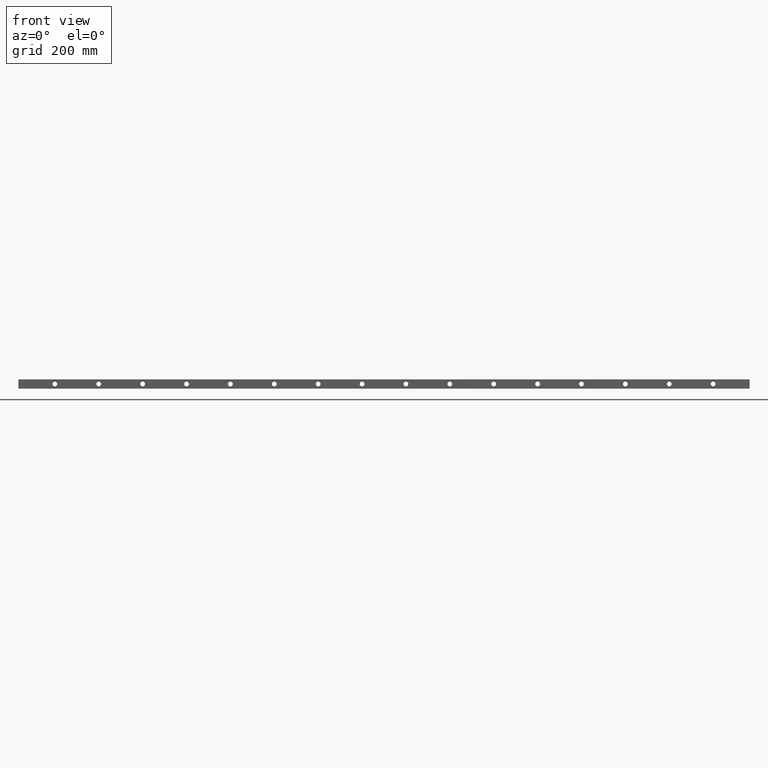
[diagram: clean part render]
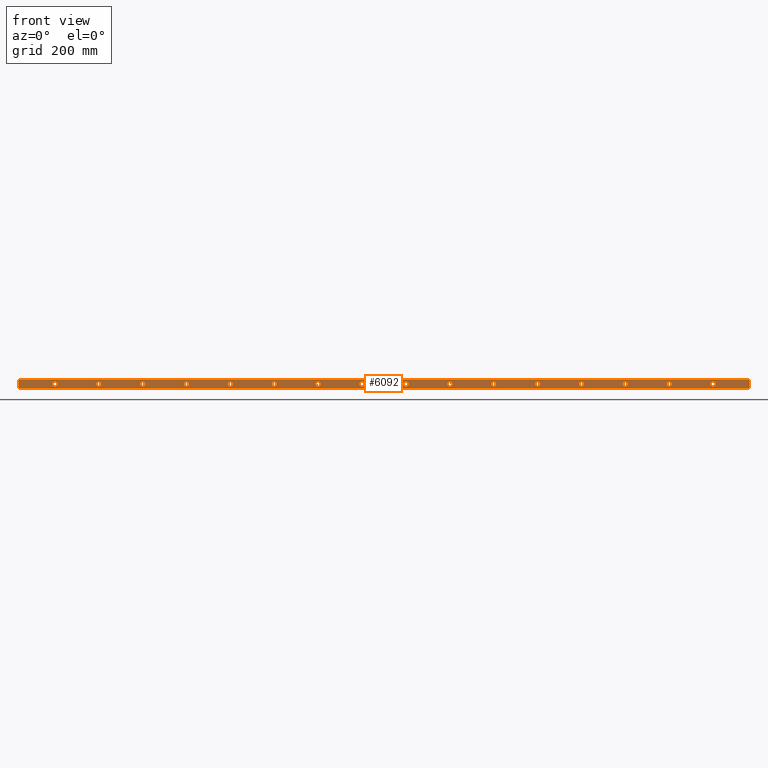
[diagram: same view with one face highlighted and labeled with its STEP entity id]
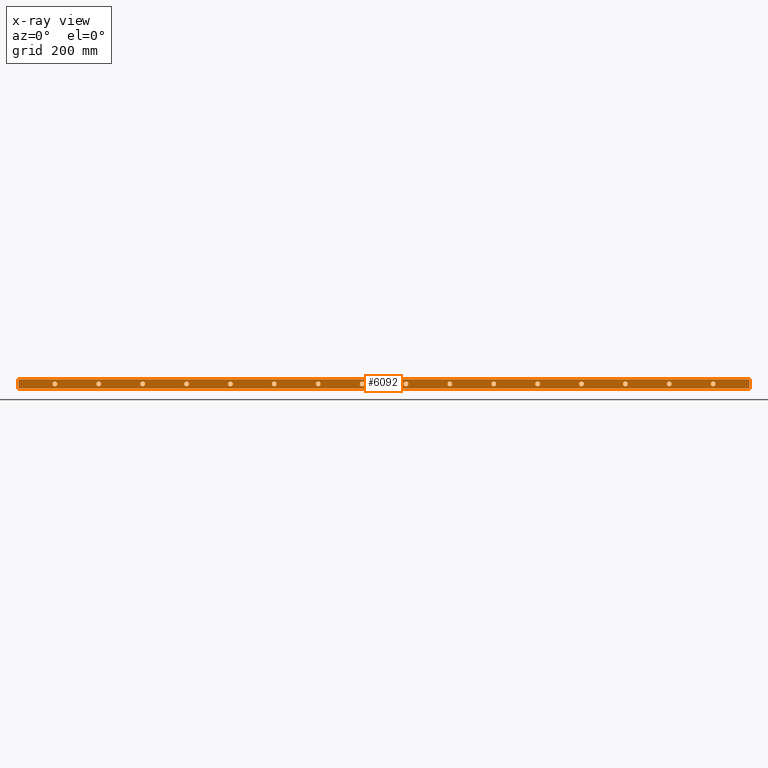
[diagram: x-ray of the same camera — body ghosted, the highlighted face saturated]
A machine part, front view. The second image highlights one B-rep face of the part: STEP entity #6092.
The next image is the same camera in x-ray: the body ghosted, the highlighted face saturated — about 0% of this face is hidden behind the body in this view.
In plain terms, the highlighted planar face has unit normal (0, -1, 0).
Its self-contained STEP definition (entity closure, byte-faithful):
#44 = DIRECTION ( 'NONE',  ( 0.0000000000000000000, 1.000000000000000000, 0.0000000000000000000 ) ) ;
#54 = EDGE_CURVE ( 'NONE', #7070, #1984, #3740, .T. ) ;
#64 = DIRECTION ( 'NONE',  ( 0.0000000000000000000, 1.000000000000000000, 0.0000000000000000000 ) ) ;
#69 = ORIENTED_EDGE ( 'NONE', *, *, #3515, .T. ) ;
#71 = DIRECTION ( 'NONE',  ( 0.0000000000000000000, 0.0000000000000000000, 1.000000000000000000 ) ) ;
#73 = DIRECTION ( 'NONE',  ( 0.0000000000000000000, 1.000000000000000000, 0.0000000000000000000 ) ) ;
#78 = CARTESIAN_POINT ( 'NONE',  ( 699.9999999999997700, 0.0000000000000000000, -12.50000000000000000 ) ) ;
#121 = DIRECTION ( 'NONE',  ( 0.0000000000000000000, 0.0000000000000000000, 1.000000000000000000 ) ) ;
#138 = AXIS2_PLACEMENT_3D ( 'NONE', #6179, #2925, #6722 ) ;
#202 = DIRECTION ( 'NONE',  ( 0.0000000000000000000, 0.0000000000000000000, 1.000000000000000000 ) ) ;
#223 = ORIENTED_EDGE ( 'NONE', *, *, #6229, .T. ) ;
#227 = CIRCLE ( 'NONE', #274, 6.500000000000019500 ) ;
#274 = AXIS2_PLACEMENT_3D ( 'NONE', #3776, #353, #4330 ) ;
#284 = DIRECTION ( 'NONE',  ( 0.0000000000000000000, 1.000000000000000000, 0.0000000000000000000 ) ) ;
#303 = DIRECTION ( 'NONE',  ( 0.0000000000000000000, 0.0000000000000000000, 1.000000000000000000 ) ) ;
#305 = DIRECTION ( 'NONE',  ( 0.0000000000000000000, 1.000000000000000000, 0.0000000000000000000 ) ) ;
#315 = CARTESIAN_POINT ( 'NONE',  ( 1899.999999999999500, 0.0000000000000000000, -12.50000000000000000 ) ) ;
#317 = AXIS2_PLACEMENT_3D ( 'NONE', #3084, #6868, #3626 ) ;
#341 = DIRECTION ( 'NONE',  ( 0.0000000000000000000, 1.000000000000000000, 0.0000000000000000000 ) ) ;
#348 = VERTEX_POINT ( 'NONE', #1387 ) ;
#350 = EDGE_LOOP ( 'NONE', ( #4107, #443 ) ) ;
#353 = DIRECTION ( 'NONE',  ( 0.0000000000000000000, 1.000000000000000000, 0.0000000000000000000 ) ) ;
#359 = VERTEX_POINT ( 'NONE', #874 ) ;
#375 = VERTEX_POINT ( 'NONE', #788 ) ;
#409 = AXIS2_PLACEMENT_3D ( 'NONE', #2719, #6525, #3274 ) ;
#420 = DIRECTION ( 'NONE',  ( 1.000000000000000000, 0.0000000000000000000, 0.0000000000000000000 ) ) ;
#429 = CIRCLE ( 'NONE', #5312, 6.499999999999903200 ) ;
#443 = ORIENTED_EDGE ( 'NONE', *, *, #709, .T. ) ;
#471 = CARTESIAN_POINT ( 'NONE',  ( 1179.999999999999800, 0.0000000000000000000, -18.99999999999990800 ) ) ;
#496 = FACE_BOUND ( 'NONE', #4873, .T. ) ;
#533 = ORIENTED_EDGE ( 'NONE', *, *, #5989, .T. ) ;
#539 = EDGE_LOOP ( 'NONE', ( #5753, #3372 ) ) ;
#541 = EDGE_LOOP ( 'NONE', ( #1098, #69 ) ) ;
#561 = DIRECTION ( 'NONE',  ( 0.0000000000000000000, -1.000000000000000000, 0.0000000000000000000 ) ) ;
#572 = EDGE_CURVE ( 'NONE', #3304, #4047, #2370, .T. ) ;
#588 = CIRCLE ( 'NONE', #802, 6.499999999999903200 ) ;
#597 = CARTESIAN_POINT ( 'NONE',  ( 1419.999999999999500, 0.0000000000000000000, -18.99999999999990800 ) ) ;
#602 = ORIENTED_EDGE ( 'NONE', *, *, #5417, .T. ) ;
#624 = EDGE_CURVE ( 'NONE', #1178, #5494, #792, .T. ) ;
#671 = FACE_BOUND ( 'NONE', #1811, .T. ) ;
#688 = CARTESIAN_POINT ( 'NONE',  ( 0.0000000000000000000, 0.0000000000000000000, 0.0000000000000000000 ) ) ;
#700 = DIRECTION ( 'NONE',  ( 0.0000000000000000000, 0.0000000000000000000, 1.000000000000000000 ) ) ;
#709 = EDGE_CURVE ( 'NONE', #7146, #4672, #3502, .T. ) ;
#715 = CARTESIAN_POINT ( 'NONE',  ( 0.0000000000000000000, 0.0000000000000000000, 0.0000000000000000000 ) ) ;
#717 = DIRECTION ( 'NONE',  ( 0.0000000000000000000, 1.000000000000000000, 0.0000000000000000000 ) ) ;
#743 = CARTESIAN_POINT ( 'NONE',  ( 1539.999999999999500, 0.0000000000000000000, -12.50000000000000000 ) ) ;
#756 = CARTESIAN_POINT ( 'NONE',  ( 100.0000000000000000, 0.0000000000000000000, -19.00000000000001800 ) ) ;
#760 = AXIS2_PLACEMENT_3D ( 'NONE', #1340, #5271, #1927 ) ;
#764 = CIRCLE ( 'NONE', #409, 6.500000000000135000 ) ;
#782 = CARTESIAN_POINT ( 'NONE',  ( 1779.999999999999300, 0.0000000000000000000, -5.999999999999865900 ) ) ;
#787 = DIRECTION ( 'NONE',  ( 0.0000000000000000000, 1.000000000000000000, 0.0000000000000000000 ) ) ;
#788 = CARTESIAN_POINT ( 'NONE',  ( 819.9999999999997700, 0.0000000000000000000, -19.00000000000002100 ) ) ;
#792 = CIRCLE ( 'NONE', #3488, 6.499999999999903200 ) ;
#799 = EDGE_CURVE ( 'NONE', #5751, #1455, #429, .T. ) ;
#802 = AXIS2_PLACEMENT_3D ( 'NONE', #6148, #2893, #6694 ) ;
#804 = DIRECTION ( 'NONE',  ( 0.0000000000000000000, 1.000000000000000000, 0.0000000000000000000 ) ) ;
#847 = VERTEX_POINT ( 'NONE', #6675 ) ;
#862 = FACE_BOUND ( 'NONE', #6724, .T. ) ;
#874 = CARTESIAN_POINT ( 'NONE',  ( 939.9999999999996600, 0.0000000000000000000, -19.00000000000002100 ) ) ;
#957 = CARTESIAN_POINT ( 'NONE',  ( 339.9999999999998900, 0.0000000000000000000, -12.50000000000000000 ) ) ;
#1017 = CARTESIAN_POINT ( 'NONE',  ( 459.9999999999998300, 0.0000000000000000000, -12.50000000000000000 ) ) ;
#1023 = CARTESIAN_POINT ( 'NONE',  ( 100.0000000000000000, 0.0000000000000000000, -12.50000000000000000 ) ) ;
#1034 = VECTOR ( 'NONE', #3085, 1000.000000000000000 ) ;
#1037 = VERTEX_POINT ( 'NONE', #5722 ) ;
#1040 = FACE_BOUND ( 'NONE', #4923, .T. ) ;
#1098 = ORIENTED_EDGE ( 'NONE', *, *, #1151, .T. ) ;
#1151 = EDGE_CURVE ( 'NONE', #4260, #6248, #6115, .T. ) ;
#1178 = VERTEX_POINT ( 'NONE', #5285 ) ;
#1184 = EDGE_LOOP ( 'NONE', ( #6414, #533 ) ) ;
#1307 = AXIS2_PLACEMENT_3D ( 'NONE', #6872, #3632, #202 ) ;
#1340 = CARTESIAN_POINT ( 'NONE',  ( 819.9999999999997700, 0.0000000000000000000, -12.50000000000000000 ) ) ;
#1347 = CARTESIAN_POINT ( 'NONE',  ( 219.9999999999999700, 0.0000000000000000000, -19.00000000000001800 ) ) ;
#1354 = ORIENTED_EDGE ( 'NONE', *, *, #7086, .T. ) ;
#1365 = CARTESIAN_POINT ( 'NONE',  ( 579.9999999999998900, 0.0000000000000000000, -19.00000000000002100 ) ) ;
#1387 = CARTESIAN_POINT ( 'NONE',  ( 1419.999999999999500, 0.0000000000000000000, -6.000000000000097700 ) ) ;
#1391 = CARTESIAN_POINT ( 'NONE',  ( 1059.999999999999500, 0.0000000000000000000, -12.50000000000000000 ) ) ;
#1407 = CARTESIAN_POINT ( 'NONE',  ( 2000.000000000000000, 0.0000000000000000000, -25.00000000000000000 ) ) ;
#1445 = CARTESIAN_POINT ( 'NONE',  ( 1779.999999999999300, 0.0000000000000000000, -19.00000000000013500 ) ) ;
#1455 = VERTEX_POINT ( 'NONE', #4277 ) ;
#1478 = VERTEX_POINT ( 'NONE', #4283 ) ;
#1542 = DIRECTION ( 'NONE',  ( 0.0000000000000000000, 0.0000000000000000000, 1.000000000000000000 ) ) ;
#1599 = ORIENTED_EDGE ( 'NONE', *, *, #2044, .T. ) ;
#1600 = DIRECTION ( 'NONE',  ( 0.0000000000000000000, 1.000000000000000000, 0.0000000000000000000 ) ) ;
#1601 = DIRECTION ( 'NONE',  ( 0.0000000000000000000, 0.0000000000000000000, 1.000000000000000000 ) ) ;
#1606 = DIRECTION ( 'NONE',  ( 0.0000000000000000000, 0.0000000000000000000, 1.000000000000000000 ) ) ;
#1638 = AXIS2_PLACEMENT_3D ( 'NONE', #4183, #787, #4742 ) ;
#1645 = VERTEX_POINT ( 'NONE', #3555 ) ;
#1660 = DIRECTION ( 'NONE',  ( 0.0000000000000000000, 0.0000000000000000000, 1.000000000000000000 ) ) ;
#1665 = DIRECTION ( 'NONE',  ( 0.0000000000000000000, 1.000000000000000000, 0.0000000000000000000 ) ) ;
#1668 = CARTESIAN_POINT ( 'NONE',  ( 939.9999999999996600, 0.0000000000000000000, -12.50000000000000000 ) ) ;
#1720 = ORIENTED_EDGE ( 'NONE', *, *, #5939, .T. ) ;
#1730 = EDGE_LOOP ( 'NONE', ( #3503, #4282, #6561, #6377 ) ) ;
#1756 = DIRECTION ( 'NONE',  ( 0.0000000000000000000, 1.000000000000000000, 0.0000000000000000000 ) ) ;
#1772 = AXIS2_PLACEMENT_3D ( 'NONE', #1017, #4964, #1601 ) ;
#1782 = DIRECTION ( 'NONE',  ( 0.0000000000000000000, 1.000000000000000000, 0.0000000000000000000 ) ) ;
#1784 = LINE ( 'NONE', #1407, #4744 ) ;
#1809 = ORIENTED_EDGE ( 'NONE', *, *, #799, .T. ) ;
#1811 = EDGE_LOOP ( 'NONE', ( #602, #4707 ) ) ;
#1897 = ORIENTED_EDGE ( 'NONE', *, *, #624, .T. ) ;
#1907 = CARTESIAN_POINT ( 'NONE',  ( 1779.999999999999300, 0.0000000000000000000, -12.50000000000000000 ) ) ;
#1927 = DIRECTION ( 'NONE',  ( 0.0000000000000000000, 0.0000000000000000000, 1.000000000000000000 ) ) ;
#1929 = CARTESIAN_POINT ( 'NONE',  ( 2000.000000000000000, 0.0000000000000000000, -25.00000000000000000 ) ) ;
#1978 = DIRECTION ( 'NONE',  ( 0.0000000000000000000, 0.0000000000000000000, 1.000000000000000000 ) ) ;
#1984 = VERTEX_POINT ( 'NONE', #2042 ) ;
#1995 = DIRECTION ( 'NONE',  ( -0.0000000000000000000, -0.0000000000000000000, -1.000000000000000000 ) ) ;
#2003 = CIRCLE ( 'NONE', #7057, 6.500000000000019500 ) ;
#2042 = CARTESIAN_POINT ( 'NONE',  ( 2000.000000000000000, 0.0000000000000000000, 0.0000000000000000000 ) ) ;
#2044 = EDGE_CURVE ( 'NONE', #5022, #359, #6982, .T. ) ;
#2048 = FACE_BOUND ( 'NONE', #350, .T. ) ;
#2224 = CARTESIAN_POINT ( 'NONE',  ( 699.9999999999997700, 0.0000000000000000000, -5.999999999999981300 ) ) ;
#2236 = FACE_BOUND ( 'NONE', #6183, .T. ) ;
#2252 = VERTEX_POINT ( 'NONE', #597 ) ;
#2264 = VECTOR ( 'NONE', #420, 1000.000000000000000 ) ;
#2331 = EDGE_CURVE ( 'NONE', #5638, #1037, #3842, .T. ) ;
#2364 = AXIS2_PLACEMENT_3D ( 'NONE', #743, #717, #700 ) ;
#2370 = CIRCLE ( 'NONE', #2364, 6.499999999999903200 ) ;
#2394 = EDGE_CURVE ( 'NONE', #1478, #2629, #2003, .T. ) ;
#2427 = FACE_BOUND ( 'NONE', #3508, .T. ) ;
#2473 = VERTEX_POINT ( 'NONE', #6932 ) ;
#2485 = AXIS2_PLACEMENT_3D ( 'NONE', #4197, #804, #4753 ) ;
#2505 = DIRECTION ( 'NONE',  ( 0.0000000000000000000, 0.0000000000000000000, 1.000000000000000000 ) ) ;
#2522 = CARTESIAN_POINT ( 'NONE',  ( 0.0000000000000000000, 0.0000000000000000000, -25.00000000000000000 ) ) ;
#2550 = AXIS2_PLACEMENT_3D ( 'NONE', #3486, #44, #4019 ) ;
#2569 = VERTEX_POINT ( 'NONE', #6004 ) ;
#2577 = EDGE_CURVE ( 'NONE', #4164, #847, #5557, .T. ) ;
#2602 = FACE_BOUND ( 'NONE', #6082, .T. ) ;
#2617 = AXIS2_PLACEMENT_3D ( 'NONE', #4962, #1600, #5492 ) ;
#2629 = VERTEX_POINT ( 'NONE', #2224 ) ;
#2719 = CARTESIAN_POINT ( 'NONE',  ( 1299.999999999999500, 0.0000000000000000000, -12.50000000000000000 ) ) ;
#2724 = EDGE_CURVE ( 'NONE', #2252, #348, #5060, .T. ) ;
#2786 = AXIS2_PLACEMENT_3D ( 'NONE', #6415, #3168, #6954 ) ;
#2809 = AXIS2_PLACEMENT_3D ( 'NONE', #3716, #284, #4252 ) ;
#2819 = CARTESIAN_POINT ( 'NONE',  ( 219.9999999999999700, 0.0000000000000000000, -5.999999999999985800 ) ) ;
#2864 = CIRCLE ( 'NONE', #2485, 6.499999999999903200 ) ;
#2879 = DIRECTION ( 'NONE',  ( -0.0000000000000000000, -0.0000000000000000000, 1.000000000000000000 ) ) ;
#2893 = DIRECTION ( 'NONE',  ( 0.0000000000000000000, 1.000000000000000000, 0.0000000000000000000 ) ) ;
#2925 = DIRECTION ( 'NONE',  ( 0.0000000000000000000, 1.000000000000000000, 0.0000000000000000000 ) ) ;
#2950 = ORIENTED_EDGE ( 'NONE', *, *, #5296, .T. ) ;
#2951 = CIRCLE ( 'NONE', #2617, 6.500000000000015100 ) ;
#3055 = EDGE_CURVE ( 'NONE', #2629, #1478, #3446, .T. ) ;
#3084 = CARTESIAN_POINT ( 'NONE',  ( 579.9999999999998900, 0.0000000000000000000, -12.50000000000000000 ) ) ;
#3085 = DIRECTION ( 'NONE',  ( -1.000000000000000000, -0.0000000000000000000, -0.0000000000000000000 ) ) ;
#3093 = AXIS2_PLACEMENT_3D ( 'NONE', #3766, #341, #4319 ) ;
#3106 = AXIS2_PLACEMENT_3D ( 'NONE', #6906, #6904, #6901 ) ;
#3152 = CARTESIAN_POINT ( 'NONE',  ( 579.9999999999998900, 0.0000000000000000000, -12.50000000000000000 ) ) ;
#3156 = AXIS2_PLACEMENT_3D ( 'NONE', #1023, #4971, #1606 ) ;
#3168 = DIRECTION ( 'NONE',  ( 0.0000000000000000000, 1.000000000000000000, 0.0000000000000000000 ) ) ;
#3191 = EDGE_CURVE ( 'NONE', #5221, #3425, #5814, .T. ) ;
#3192 = ORIENTED_EDGE ( 'NONE', *, *, #6134, .T. ) ;
#3274 = DIRECTION ( 'NONE',  ( 0.0000000000000000000, 0.0000000000000000000, 1.000000000000000000 ) ) ;
#3278 = ORIENTED_EDGE ( 'NONE', *, *, #5851, .T. ) ;
#3304 = VERTEX_POINT ( 'NONE', #5112 ) ;
#3330 = ORIENTED_EDGE ( 'NONE', *, *, #5469, .T. ) ;
#3372 = ORIENTED_EDGE ( 'NONE', *, *, #5367, .T. ) ;
#3425 = VERTEX_POINT ( 'NONE', #5289 ) ;
#3436 = PLANE ( 'NONE',  #6991 ) ;
#3446 = CIRCLE ( 'NONE', #2786, 6.500000000000019500 ) ;
#3470 = CIRCLE ( 'NONE', #4690, 6.500000000000019500 ) ;
#3486 = CARTESIAN_POINT ( 'NONE',  ( 1419.999999999999500, 0.0000000000000000000, -12.50000000000000000 ) ) ;
#3488 = AXIS2_PLACEMENT_3D ( 'NONE', #7052, #7041, #7034 ) ;
#3501 = CARTESIAN_POINT ( 'NONE',  ( 939.9999999999996600, 0.0000000000000000000, -12.50000000000000000 ) ) ;
#3502 = CIRCLE ( 'NONE', #3106, 6.500000000000135000 ) ;
#3503 = ORIENTED_EDGE ( 'NONE', *, *, #6088, .F. ) ;
#3508 = EDGE_LOOP ( 'NONE', ( #6055, #6704 ) ) ;
#3515 = EDGE_CURVE ( 'NONE', #6248, #4260, #5885, .T. ) ;
#3548 = AXIS2_PLACEMENT_3D ( 'NONE', #5132, #1782, #5668 ) ;
#3554 = FACE_BOUND ( 'NONE', #5955, .T. ) ;
#3555 = CARTESIAN_POINT ( 'NONE',  ( 339.9999999999998900, 0.0000000000000000000, -5.999999999999985800 ) ) ;
#3565 = DIRECTION ( 'NONE',  ( 0.0000000000000000000, 1.000000000000000000, 0.0000000000000000000 ) ) ;
#3595 = VERTEX_POINT ( 'NONE', #1347 ) ;
#3626 = DIRECTION ( 'NONE',  ( 0.0000000000000000000, 0.0000000000000000000, 1.000000000000000000 ) ) ;
#3632 = DIRECTION ( 'NONE',  ( 0.0000000000000000000, 1.000000000000000000, 0.0000000000000000000 ) ) ;
#3702 = DIRECTION ( 'NONE',  ( 0.0000000000000000000, 0.0000000000000000000, 1.000000000000000000 ) ) ;
#3706 = ORIENTED_EDGE ( 'NONE', *, *, #6678, .T. ) ;
#3716 = CARTESIAN_POINT ( 'NONE',  ( 1899.999999999999500, 0.0000000000000000000, -12.50000000000000000 ) ) ;
#3718 = FACE_OUTER_BOUND ( 'NONE', #1730, .T. ) ;
#3740 = LINE ( 'NONE', #688, #2264 ) ;
#3766 = CARTESIAN_POINT ( 'NONE',  ( 1419.999999999999500, 0.0000000000000000000, -12.50000000000000000 ) ) ;
#3776 = CARTESIAN_POINT ( 'NONE',  ( 819.9999999999997700, 0.0000000000000000000, -12.50000000000000000 ) ) ;
#3797 = CIRCLE ( 'NONE', #6892, 6.500000000000015100 ) ;
#3842 = CIRCLE ( 'NONE', #5633, 6.500000000000135000 ) ;
#3881 = FACE_BOUND ( 'NONE', #4606, .T. ) ;
#3943 = VERTEX_POINT ( 'NONE', #2819 ) ;
#3996 = EDGE_CURVE ( 'NONE', #3595, #3943, #6136, .T. ) ;
#4019 = DIRECTION ( 'NONE',  ( 0.0000000000000000000, 0.0000000000000000000, 1.000000000000000000 ) ) ;
#4036 = DIRECTION ( 'NONE',  ( 0.0000000000000000000, 0.0000000000000000000, 1.000000000000000000 ) ) ;
#4037 = EDGE_CURVE ( 'NONE', #1645, #5225, #5149, .T. ) ;
#4047 = VERTEX_POINT ( 'NONE', #6260 ) ;
#4056 = CIRCLE ( 'NONE', #3093, 6.499999999999903200 ) ;
#4107 = ORIENTED_EDGE ( 'NONE', *, *, #5424, .T. ) ;
#4164 = VERTEX_POINT ( 'NONE', #6946 ) ;
#4183 = CARTESIAN_POINT ( 'NONE',  ( 1179.999999999999800, 0.0000000000000000000, -12.50000000000000000 ) ) ;
#4197 = CARTESIAN_POINT ( 'NONE',  ( 1659.999999999999500, 0.0000000000000000000, -12.50000000000000000 ) ) ;
#4252 = DIRECTION ( 'NONE',  ( 0.0000000000000000000, 0.0000000000000000000, 1.000000000000000000 ) ) ;
#4260 = VERTEX_POINT ( 'NONE', #1445 ) ;
#4275 = ORIENTED_EDGE ( 'NONE', *, *, #2331, .T. ) ;
#4277 = CARTESIAN_POINT ( 'NONE',  ( 1059.999999999999500, 0.0000000000000000000, -18.99999999999990800 ) ) ;
#4282 = ORIENTED_EDGE ( 'NONE', *, *, #6688, .F. ) ;
#4283 = CARTESIAN_POINT ( 'NONE',  ( 699.9999999999997700, 0.0000000000000000000, -19.00000000000002100 ) ) ;
#4307 = CIRCLE ( 'NONE', #1307, 6.500000000000016000 ) ;
#4319 = DIRECTION ( 'NONE',  ( 0.0000000000000000000, 0.0000000000000000000, 1.000000000000000000 ) ) ;
#4330 = DIRECTION ( 'NONE',  ( 0.0000000000000000000, 0.0000000000000000000, 1.000000000000000000 ) ) ;
#4347 = EDGE_LOOP ( 'NONE', ( #1720, #3706 ) ) ;
#4415 = EDGE_CURVE ( 'NONE', #4521, #6528, #7022, .T. ) ;
#4521 = VERTEX_POINT ( 'NONE', #1365 ) ;
#4525 = DIRECTION ( 'NONE',  ( 0.0000000000000000000, -0.0000000000000000000, -1.000000000000000000 ) ) ;
#4566 = CARTESIAN_POINT ( 'NONE',  ( 579.9999999999998900, 0.0000000000000000000, -5.999999999999981300 ) ) ;
#4606 = EDGE_LOOP ( 'NONE', ( #3278, #6335 ) ) ;
#4641 = AXIS2_PLACEMENT_3D ( 'NONE', #6794, #3565, #121 ) ;
#4660 = CIRCLE ( 'NONE', #138, 6.500000000000015100 ) ;
#4672 = VERTEX_POINT ( 'NONE', #6368 ) ;
#4690 = AXIS2_PLACEMENT_3D ( 'NONE', #3501, #64, #4036 ) ;
#4697 = EDGE_CURVE ( 'NONE', #1984, #6233, #1784, .T. ) ;
#4707 = ORIENTED_EDGE ( 'NONE', *, *, #4037, .T. ) ;
#4742 = DIRECTION ( 'NONE',  ( 0.0000000000000000000, 0.0000000000000000000, 1.000000000000000000 ) ) ;
#4744 = VECTOR ( 'NONE', #1995, 1000.000000000000000 ) ;
#4753 = DIRECTION ( 'NONE',  ( 0.0000000000000000000, 0.0000000000000000000, 1.000000000000000000 ) ) ;
#4754 = ORIENTED_EDGE ( 'NONE', *, *, #572, .T. ) ;
#4803 = AXIS2_PLACEMENT_3D ( 'NONE', #5328, #5326, #5322 ) ;
#4804 = CARTESIAN_POINT ( 'NONE',  ( 1899.999999999999500, 0.0000000000000000000, -5.999999999999865900 ) ) ;
#4873 = EDGE_LOOP ( 'NONE', ( #3330, #4754 ) ) ;
#4906 = DIRECTION ( 'NONE',  ( 0.0000000000000000000, 1.000000000000000000, 0.0000000000000000000 ) ) ;
#4913 = VERTEX_POINT ( 'NONE', #5558 ) ;
#4923 = EDGE_LOOP ( 'NONE', ( #1354, #1897 ) ) ;
#4925 = CIRCLE ( 'NONE', #6031, 6.499999999999903200 ) ;
#4962 = CARTESIAN_POINT ( 'NONE',  ( 219.9999999999999700, 0.0000000000000000000, -12.50000000000000000 ) ) ;
#4964 = DIRECTION ( 'NONE',  ( 0.0000000000000000000, 1.000000000000000000, 0.0000000000000000000 ) ) ;
#4968 = ORIENTED_EDGE ( 'NONE', *, *, #2577, .T. ) ;
#4971 = DIRECTION ( 'NONE',  ( 0.0000000000000000000, 1.000000000000000000, 0.0000000000000000000 ) ) ;
#5012 = FACE_BOUND ( 'NONE', #4347, .T. ) ;
#5022 = VERTEX_POINT ( 'NONE', #5770 ) ;
#5060 = CIRCLE ( 'NONE', #2550, 6.499999999999903200 ) ;
#5064 = CARTESIAN_POINT ( 'NONE',  ( 0.0000000000000000000, 0.0000000000000000000, 0.0000000000000000000 ) ) ;
#5105 = CARTESIAN_POINT ( 'NONE',  ( 1659.999999999999500, 0.0000000000000000000, -12.50000000000000000 ) ) ;
#5112 = CARTESIAN_POINT ( 'NONE',  ( 1539.999999999999500, 0.0000000000000000000, -6.000000000000097700 ) ) ;
#5122 = AXIS2_PLACEMENT_3D ( 'NONE', #1391, #5316, #1978 ) ;
#5132 = CARTESIAN_POINT ( 'NONE',  ( 219.9999999999999700, 0.0000000000000000000, -12.50000000000000000 ) ) ;
#5149 = CIRCLE ( 'NONE', #4641, 6.500000000000015100 ) ;
#5193 = FACE_BOUND ( 'NONE', #7053, .T. ) ;
#5221 = VERTEX_POINT ( 'NONE', #756 ) ;
#5225 = VERTEX_POINT ( 'NONE', #5273 ) ;
#5271 = DIRECTION ( 'NONE',  ( 0.0000000000000000000, 1.000000000000000000, 0.0000000000000000000 ) ) ;
#5273 = CARTESIAN_POINT ( 'NONE',  ( 339.9999999999998900, 0.0000000000000000000, -19.00000000000001800 ) ) ;
#5285 = CARTESIAN_POINT ( 'NONE',  ( 1179.999999999999800, 0.0000000000000000000, -6.000000000000097700 ) ) ;
#5289 = CARTESIAN_POINT ( 'NONE',  ( 100.0000000000000000, 0.0000000000000000000, -5.999999999999984900 ) ) ;
#5296 = EDGE_CURVE ( 'NONE', #1455, #5751, #5768, .T. ) ;
#5312 = AXIS2_PLACEMENT_3D ( 'NONE', #6773, #6771, #6764 ) ;
#5316 = DIRECTION ( 'NONE',  ( 0.0000000000000000000, 1.000000000000000000, 0.0000000000000000000 ) ) ;
#5322 = DIRECTION ( 'NONE',  ( 0.0000000000000000000, 0.0000000000000000000, 1.000000000000000000 ) ) ;
#5326 = DIRECTION ( 'NONE',  ( 0.0000000000000000000, 1.000000000000000000, 0.0000000000000000000 ) ) ;
#5328 = CARTESIAN_POINT ( 'NONE',  ( 1779.999999999999300, 0.0000000000000000000, -12.50000000000000000 ) ) ;
#5341 = ORIENTED_EDGE ( 'NONE', *, *, #3191, .T. ) ;
#5348 = FACE_BOUND ( 'NONE', #6212, .T. ) ;
#5367 = EDGE_CURVE ( 'NONE', #6528, #4521, #5432, .T. ) ;
#5417 = EDGE_CURVE ( 'NONE', #5225, #1645, #3797, .T. ) ;
#5424 = EDGE_CURVE ( 'NONE', #4672, #7146, #764, .T. ) ;
#5432 = CIRCLE ( 'NONE', #5822, 6.500000000000019500 ) ;
#5462 = CARTESIAN_POINT ( 'NONE',  ( 1059.999999999999500, 0.0000000000000000000, -6.000000000000097700 ) ) ;
#5469 = EDGE_CURVE ( 'NONE', #4047, #3304, #588, .T. ) ;
#5492 = DIRECTION ( 'NONE',  ( 0.0000000000000000000, 0.0000000000000000000, 1.000000000000000000 ) ) ;
#5494 = VERTEX_POINT ( 'NONE', #471 ) ;
#5511 = LINE ( 'NONE', #5064, #6770 ) ;
#5557 = CIRCLE ( 'NONE', #1772, 6.500000000000015100 ) ;
#5558 = CARTESIAN_POINT ( 'NONE',  ( 1659.999999999999500, 0.0000000000000000000, -18.99999999999990800 ) ) ;
#5633 = AXIS2_PLACEMENT_3D ( 'NONE', #315, #305, #303 ) ;
#5638 = VERTEX_POINT ( 'NONE', #4804 ) ;
#5639 = DIRECTION ( 'NONE',  ( 0.0000000000000000000, 0.0000000000000000000, 1.000000000000000000 ) ) ;
#5668 = DIRECTION ( 'NONE',  ( 0.0000000000000000000, 0.0000000000000000000, 1.000000000000000000 ) ) ;
#5681 = LINE ( 'NONE', #2522, #1034 ) ;
#5722 = CARTESIAN_POINT ( 'NONE',  ( 1899.999999999999500, 0.0000000000000000000, -19.00000000000013500 ) ) ;
#5751 = VERTEX_POINT ( 'NONE', #5462 ) ;
#5753 = ORIENTED_EDGE ( 'NONE', *, *, #4415, .T. ) ;
#5768 = CIRCLE ( 'NONE', #5122, 6.499999999999903200 ) ;
#5770 = CARTESIAN_POINT ( 'NONE',  ( 939.9999999999996600, 0.0000000000000000000, -5.999999999999981300 ) ) ;
#5785 = DIRECTION ( 'NONE',  ( 0.0000000000000000000, 1.000000000000000000, 0.0000000000000000000 ) ) ;
#5814 = CIRCLE ( 'NONE', #3156, 6.500000000000016000 ) ;
#5822 = AXIS2_PLACEMENT_3D ( 'NONE', #3152, #6941, #3702 ) ;
#5851 = EDGE_CURVE ( 'NONE', #4913, #2473, #4925, .T. ) ;
#5885 = CIRCLE ( 'NONE', #6063, 6.500000000000135000 ) ;
#5911 = ORIENTED_EDGE ( 'NONE', *, *, #6862, .T. ) ;
#5917 = CIRCLE ( 'NONE', #1638, 6.499999999999903200 ) ;
#5939 = EDGE_CURVE ( 'NONE', #375, #6106, #227, .T. ) ;
#5955 = EDGE_LOOP ( 'NONE', ( #2950, #1809 ) ) ;
#5989 = EDGE_CURVE ( 'NONE', #3943, #3595, #2951, .T. ) ;
#6004 = CARTESIAN_POINT ( 'NONE',  ( 0.0000000000000000000, 0.0000000000000000000, -25.00000000000000000 ) ) ;
#6031 = AXIS2_PLACEMENT_3D ( 'NONE', #5105, #1756, #5639 ) ;
#6055 = ORIENTED_EDGE ( 'NONE', *, *, #2394, .T. ) ;
#6063 = AXIS2_PLACEMENT_3D ( 'NONE', #1907, #5785, #2505 ) ;
#6082 = EDGE_LOOP ( 'NONE', ( #6654, #5911 ) ) ;
#6088 = EDGE_CURVE ( 'NONE', #2569, #7070, #5511, .T. ) ;
#6092 = ADVANCED_FACE ( 'NONE', ( #3881, #2602, #1040, #5348, #2427, #862, #6604, #5193, #3718, #2236, #671, #6428, #5012, #3554, #2048, #496, #6262 ), #3436, .T. ) ;
#6103 = CARTESIAN_POINT ( 'NONE',  ( 819.9999999999997700, 0.0000000000000000000, -5.999999999999981300 ) ) ;
#6106 = VERTEX_POINT ( 'NONE', #6103 ) ;
#6115 = CIRCLE ( 'NONE', #4803, 6.500000000000135000 ) ;
#6134 = EDGE_CURVE ( 'NONE', #847, #4164, #4660, .T. ) ;
#6136 = CIRCLE ( 'NONE', #3548, 6.500000000000015100 ) ;
#6148 = CARTESIAN_POINT ( 'NONE',  ( 1539.999999999999500, 0.0000000000000000000, -12.50000000000000000 ) ) ;
#6156 = ORIENTED_EDGE ( 'NONE', *, *, #6549, .T. ) ;
#6179 = CARTESIAN_POINT ( 'NONE',  ( 459.9999999999998300, 0.0000000000000000000, -12.50000000000000000 ) ) ;
#6183 = EDGE_LOOP ( 'NONE', ( #6706, #4275 ) ) ;
#6212 = EDGE_LOOP ( 'NONE', ( #6156, #1599 ) ) ;
#6229 = EDGE_CURVE ( 'NONE', #3425, #5221, #4307, .T. ) ;
#6233 = VERTEX_POINT ( 'NONE', #1929 ) ;
#6248 = VERTEX_POINT ( 'NONE', #782 ) ;
#6260 = CARTESIAN_POINT ( 'NONE',  ( 1539.999999999999500, 0.0000000000000000000, -18.99999999999990800 ) ) ;
#6262 = FACE_BOUND ( 'NONE', #541, .T. ) ;
#6279 = EDGE_CURVE ( 'NONE', #2473, #4913, #2864, .T. ) ;
#6335 = ORIENTED_EDGE ( 'NONE', *, *, #6279, .T. ) ;
#6368 = CARTESIAN_POINT ( 'NONE',  ( 1299.999999999999500, 0.0000000000000000000, -19.00000000000013500 ) ) ;
#6377 = ORIENTED_EDGE ( 'NONE', *, *, #54, .F. ) ;
#6414 = ORIENTED_EDGE ( 'NONE', *, *, #3996, .T. ) ;
#6415 = CARTESIAN_POINT ( 'NONE',  ( 699.9999999999997700, 0.0000000000000000000, -12.50000000000000000 ) ) ;
#6428 = FACE_BOUND ( 'NONE', #539, .T. ) ;
#6525 = DIRECTION ( 'NONE',  ( 0.0000000000000000000, 1.000000000000000000, 0.0000000000000000000 ) ) ;
#6528 = VERTEX_POINT ( 'NONE', #4566 ) ;
#6549 = EDGE_CURVE ( 'NONE', #359, #5022, #3470, .T. ) ;
#6561 = ORIENTED_EDGE ( 'NONE', *, *, #4697, .F. ) ;
#6604 = FACE_BOUND ( 'NONE', #1184, .T. ) ;
#6654 = ORIENTED_EDGE ( 'NONE', *, *, #2724, .T. ) ;
#6675 = CARTESIAN_POINT ( 'NONE',  ( 459.9999999999998300, 0.0000000000000000000, -5.999999999999985800 ) ) ;
#6678 = EDGE_CURVE ( 'NONE', #6106, #375, #6921, .T. ) ;
#6688 = EDGE_CURVE ( 'NONE', #6233, #2569, #5681, .T. ) ;
#6694 = DIRECTION ( 'NONE',  ( 0.0000000000000000000, 0.0000000000000000000, 1.000000000000000000 ) ) ;
#6704 = ORIENTED_EDGE ( 'NONE', *, *, #3055, .T. ) ;
#6706 = ORIENTED_EDGE ( 'NONE', *, *, #7125, .T. ) ;
#6722 = DIRECTION ( 'NONE',  ( 0.0000000000000000000, 0.0000000000000000000, 1.000000000000000000 ) ) ;
#6724 = EDGE_LOOP ( 'NONE', ( #4968, #3192 ) ) ;
#6764 = DIRECTION ( 'NONE',  ( 0.0000000000000000000, 0.0000000000000000000, 1.000000000000000000 ) ) ;
#6770 = VECTOR ( 'NONE', #2879, 1000.000000000000000 ) ;
#6771 = DIRECTION ( 'NONE',  ( 0.0000000000000000000, 1.000000000000000000, 0.0000000000000000000 ) ) ;
#6773 = CARTESIAN_POINT ( 'NONE',  ( 1059.999999999999500, 0.0000000000000000000, -12.50000000000000000 ) ) ;
#6794 = CARTESIAN_POINT ( 'NONE',  ( 339.9999999999998900, 0.0000000000000000000, -12.50000000000000000 ) ) ;
#6862 = EDGE_CURVE ( 'NONE', #348, #2252, #4056, .T. ) ;
#6868 = DIRECTION ( 'NONE',  ( 0.0000000000000000000, 1.000000000000000000, 0.0000000000000000000 ) ) ;
#6872 = CARTESIAN_POINT ( 'NONE',  ( 100.0000000000000000, 0.0000000000000000000, -12.50000000000000000 ) ) ;
#6892 = AXIS2_PLACEMENT_3D ( 'NONE', #957, #4906, #1542 ) ;
#6901 = DIRECTION ( 'NONE',  ( 0.0000000000000000000, 0.0000000000000000000, 1.000000000000000000 ) ) ;
#6904 = DIRECTION ( 'NONE',  ( 0.0000000000000000000, 1.000000000000000000, 0.0000000000000000000 ) ) ;
#6906 = CARTESIAN_POINT ( 'NONE',  ( 1299.999999999999500, 0.0000000000000000000, -12.50000000000000000 ) ) ;
#6921 = CIRCLE ( 'NONE', #760, 6.500000000000019500 ) ;
#6932 = CARTESIAN_POINT ( 'NONE',  ( 1659.999999999999500, 0.0000000000000000000, -6.000000000000097700 ) ) ;
#6941 = DIRECTION ( 'NONE',  ( 0.0000000000000000000, 1.000000000000000000, 0.0000000000000000000 ) ) ;
#6946 = CARTESIAN_POINT ( 'NONE',  ( 459.9999999999998300, 0.0000000000000000000, -19.00000000000001800 ) ) ;
#6951 = CARTESIAN_POINT ( 'NONE',  ( 1299.999999999999500, 0.0000000000000000000, -5.999999999999865900 ) ) ;
#6954 = DIRECTION ( 'NONE',  ( 0.0000000000000000000, 0.0000000000000000000, 1.000000000000000000 ) ) ;
#6982 = CIRCLE ( 'NONE', #7198, 6.500000000000019500 ) ;
#6991 = AXIS2_PLACEMENT_3D ( 'NONE', #7213, #561, #4525 ) ;
#7022 = CIRCLE ( 'NONE', #317, 6.500000000000019500 ) ;
#7034 = DIRECTION ( 'NONE',  ( 0.0000000000000000000, 0.0000000000000000000, 1.000000000000000000 ) ) ;
#7041 = DIRECTION ( 'NONE',  ( 0.0000000000000000000, 1.000000000000000000, 0.0000000000000000000 ) ) ;
#7052 = CARTESIAN_POINT ( 'NONE',  ( 1179.999999999999800, 0.0000000000000000000, -12.50000000000000000 ) ) ;
#7053 = EDGE_LOOP ( 'NONE', ( #5341, #223 ) ) ;
#7057 = AXIS2_PLACEMENT_3D ( 'NONE', #78, #73, #71 ) ;
#7070 = VERTEX_POINT ( 'NONE', #715 ) ;
#7086 = EDGE_CURVE ( 'NONE', #5494, #1178, #5917, .T. ) ;
#7125 = EDGE_CURVE ( 'NONE', #1037, #5638, #7187, .T. ) ;
#7146 = VERTEX_POINT ( 'NONE', #6951 ) ;
#7187 = CIRCLE ( 'NONE', #2809, 6.500000000000135000 ) ;
#7198 = AXIS2_PLACEMENT_3D ( 'NONE', #1668, #1665, #1660 ) ;
#7213 = CARTESIAN_POINT ( 'NONE',  ( 0.0000000000000000000, 0.0000000000000000000, 0.0000000000000000000 ) ) ;